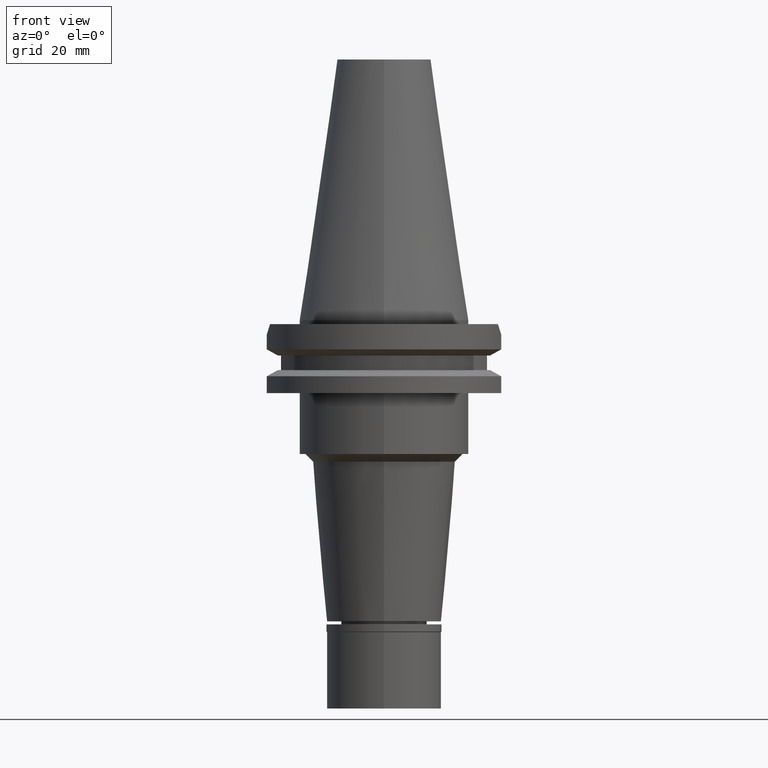
[diagram: clean part render]
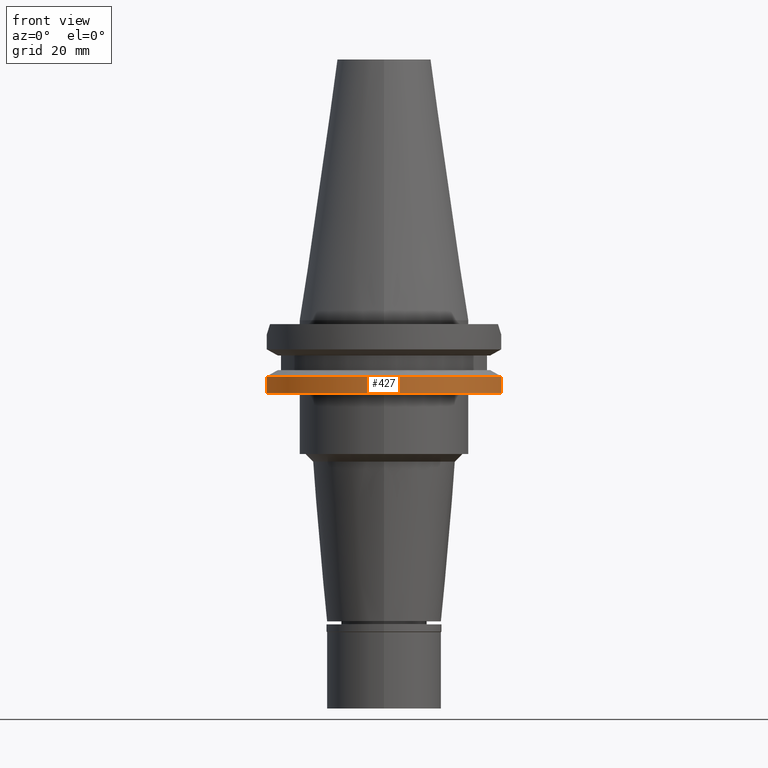
[diagram: same view with one face highlighted and labeled with its STEP entity id]
A machine part, front view. The second image highlights one B-rep face of the part: STEP entity #427.
In plain terms, the highlighted cylindrical surface (partial cylindrical patch) has radius 31.75 mm, axis along (0, 0, -1).
Its self-contained STEP definition (entity closure, byte-faithful):
#26 = EDGE_CURVE ( 'NONE', #2738, #1635, #126, .T. ) ;
#126 = LINE ( 'NONE', #3234, #2224 ) ;
#301 = EDGE_CURVE ( 'NONE', #2519, #1635, #2284, .T. ) ;
#414 = FACE_OUTER_BOUND ( 'NONE', #2855, .T. ) ;
#427 = ADVANCED_FACE ( 'NONE', ( #414 ), #911, .T. ) ;
#439 = AXIS2_PLACEMENT_3D ( 'NONE', #1716, #1661, #635 ) ;
#443 = ORIENTED_EDGE ( 'NONE', *, *, #26, .F. ) ;
#572 = VERTEX_POINT ( 'NONE', #2970 ) ;
#580 = CARTESIAN_POINT ( 'NONE',  ( 30.67550146537999822, -8.190000601191000484, -14.65184201444000145 ) ) ;
#629 = EDGE_CURVE ( 'NONE', #2738, #572, #2346, .T. ) ;
#635 = DIRECTION ( 'NONE',  ( 0.0000000000000000000, -1.000000000000000000, 0.0000000000000000000 ) ) ;
#742 = VECTOR ( 'NONE', #1383, 1000.000000000000000 ) ;
#766 = AXIS2_PLACEMENT_3D ( 'NONE', #1819, #2056, #2071 ) ;
#881 = DIRECTION ( 'NONE',  ( -7.571052974831996667E-09, 2.835675182330999006E-08, 0.9999999999999996669 ) ) ;
#911 = CYLINDRICAL_SURFACE ( 'NONE', #439, 31.75000000000000000 ) ;
#1383 = DIRECTION ( 'NONE',  ( 3.649491773058928344E-08, 1.366915594633972257E-07, -0.9999999999999900080 ) ) ;
#1505 = ORIENTED_EDGE ( 'NONE', *, *, #301, .T. ) ;
#1635 = VERTEX_POINT ( 'NONE', #2797 ) ;
#1661 = DIRECTION ( 'NONE',  ( 0.0000000000000000000, 0.0000000000000000000, -1.000000000000000000 ) ) ;
#1673 = CARTESIAN_POINT ( 'NONE',  ( -30.67550162588999640, -8.189999999999999503, -19.05000000000000071 ) ) ;
#1716 = CARTESIAN_POINT ( 'NONE',  ( 0.0000000000000000000, 2.160368802205999604E-14, 76.40749999999999886 ) ) ;
#1762 = CARTESIAN_POINT ( 'NONE',  ( 30.67550146537999822, -8.190000601191000484, -14.65184201444000145 ) ) ;
#1819 = CARTESIAN_POINT ( 'NONE',  ( 0.0000000000000000000, 2.160368802205999604E-14, -19.05000000000000071 ) ) ;
#2035 = EDGE_CURVE ( 'NONE', #2519, #572, #2170, .T. ) ;
#2056 = DIRECTION ( 'NONE',  ( 0.0000000000000000000, 0.0000000000000000000, 1.000000000000000000 ) ) ;
#2071 = DIRECTION ( 'NONE',  ( 0.0000000000000000000, -1.000000000000000000, 0.0000000000000000000 ) ) ;
#2094 = CARTESIAN_POINT ( 'NONE',  ( 0.0000000000000000000, 1.055021971275999843E-14, -14.65183664206000103 ) ) ;
#2170 = LINE ( 'NONE', #580, #742 ) ;
#2224 = VECTOR ( 'NONE', #881, 999.9999999999998863 ) ;
#2284 = CIRCLE ( 'NONE', #2714, 31.74999999999998579 ) ;
#2346 = CIRCLE ( 'NONE', #766, 31.75000000000000000 ) ;
#2440 = ORIENTED_EDGE ( 'NONE', *, *, #629, .T. ) ;
#2519 = VERTEX_POINT ( 'NONE', #1762 ) ;
#2637 = DIRECTION ( 'NONE',  ( 0.9661575315241073270, -0.2579527559055020958, 0.0000000000000000000 ) ) ;
#2714 = AXIS2_PLACEMENT_3D ( 'NONE', #2094, #3127, #2637 ) ;
#2738 = VERTEX_POINT ( 'NONE', #1673 ) ;
#2797 = CARTESIAN_POINT ( 'NONE',  ( -30.67550165918999738, -8.189999875282001796, -14.65183552755999941 ) ) ;
#2814 = ORIENTED_EDGE ( 'NONE', *, *, #2035, .F. ) ;
#2855 = EDGE_LOOP ( 'NONE', ( #1505, #443, #2440, #2814 ) ) ;
#2970 = CARTESIAN_POINT ( 'NONE',  ( 30.67550162588999640, -8.189999999999999503, -19.05000000000000071 ) ) ;
#3127 = DIRECTION ( 'NONE',  ( 0.0000000000000000000, 0.0000000000000000000, -1.000000000000000000 ) ) ;
#3234 = CARTESIAN_POINT ( 'NONE',  ( -30.67550162588999640, -8.189999999999999503, -19.05000000000000071 ) ) ;